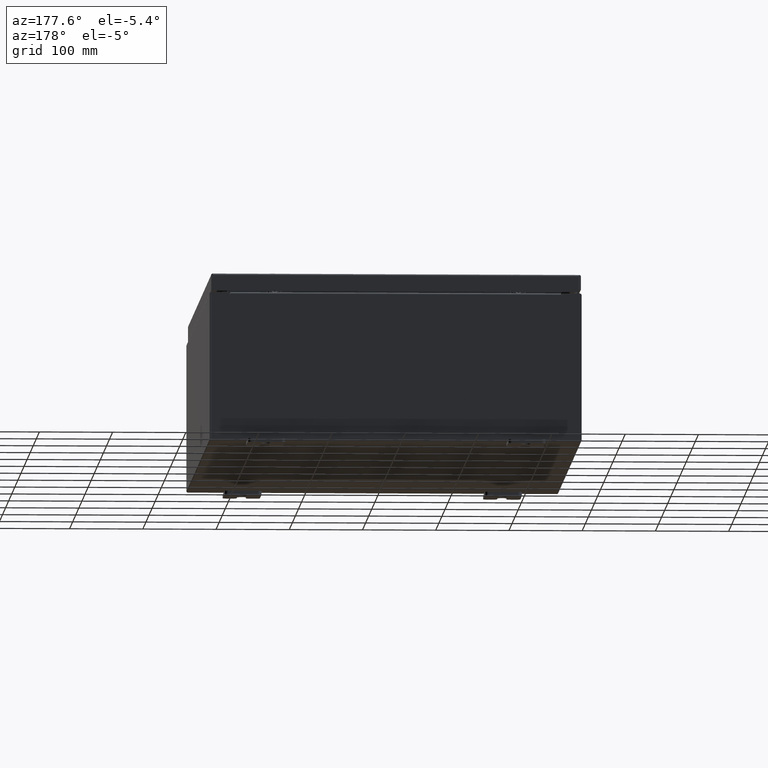
[diagram: clean part render]
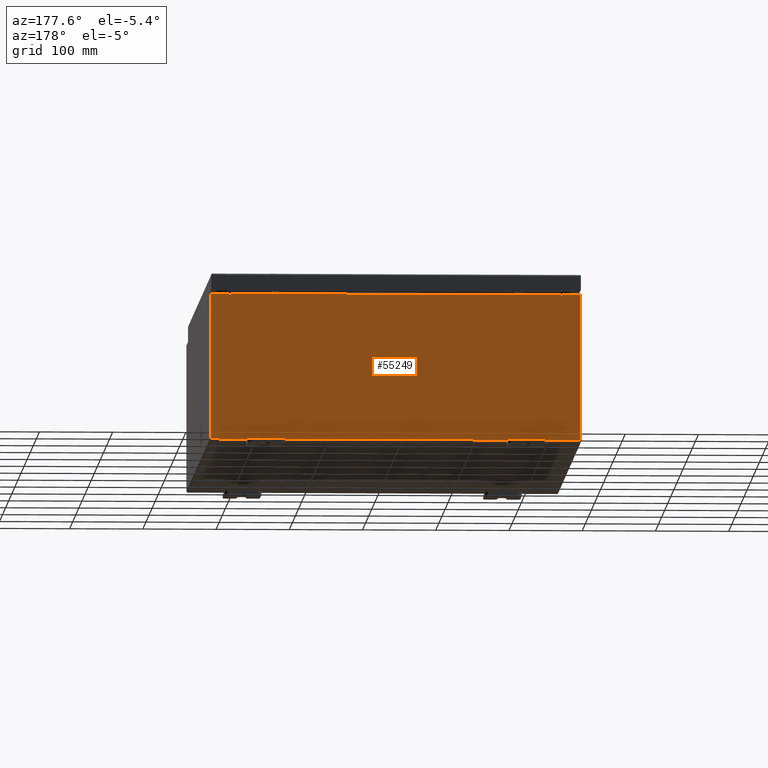
[diagram: same view with one face highlighted and labeled with its STEP entity id]
A machine part, auxiliary view. The second image highlights one B-rep face of the part: STEP entity #55249.
In plain terms, the highlighted planar face has unit normal (0, -1, 0).
Its self-contained STEP definition (entity closure, byte-faithful):
#332 = VECTOR ( 'NONE', #34053, 39.37007874015748100 ) ;
#1232 = VERTEX_POINT ( 'NONE', #18783 ) ;
#1401 = DIRECTION ( 'NONE',  ( 0.0000000000000000000, 0.0000000000000000000, -1.000000000000000000 ) ) ;
#2422 = CARTESIAN_POINT ( 'NONE',  ( 8.924549999999831200, -0.0000000000000000000, -3.873765880731813500E-013 ) ) ;
#2809 = VERTEX_POINT ( 'NONE', #6206 ) ;
#3944 = VECTOR ( 'NONE', #43146, 39.37007874015748100 ) ;
#4521 = VECTOR ( 'NONE', #11487, 39.37007874015748100 ) ;
#4735 = VERTEX_POINT ( 'NONE', #12769 ) ;
#5803 = VERTEX_POINT ( 'NONE', #38382 ) ;
#6176 = VECTOR ( 'NONE', #61649, 39.37007874015748100 ) ;
#6206 = CARTESIAN_POINT ( 'NONE',  ( 9.925300000000000000, 0.0000000000000000000, -3.925299999999999600 ) ) ;
#6792 = VECTOR ( 'NONE', #1401, 39.37007874015748100 ) ;
#7474 = ORIENTED_EDGE ( 'NONE', *, *, #50141, .T. ) ;
#7710 = EDGE_CURVE ( 'NONE', #49807, #31341, #41537, .T. ) ;
#8410 = ORIENTED_EDGE ( 'NONE', *, *, #31869, .F. ) ;
#8414 = CARTESIAN_POINT ( 'NONE',  ( -8.924550000000000000, -0.0000000000000000000, 0.0000000000000000000 ) ) ;
#8947 = VECTOR ( 'NONE', #13091, 39.37007874015748100 ) ;
#9568 = VECTOR ( 'NONE', #19573, 39.37007874015748100 ) ;
#10337 = AXIS2_PLACEMENT_3D ( 'NONE', #58798, #29211, #63765 ) ;
#10699 = DIRECTION ( 'NONE',  ( 0.0000000000000000000, 0.0000000000000000000, -1.000000000000000000 ) ) ;
#11098 = CARTESIAN_POINT ( 'NONE',  ( -8.887200000000000000, -0.0000000000000000000, 3.874949999999999700 ) ) ;
#11487 = DIRECTION ( 'NONE',  ( -1.000000000000000000, -0.0000000000000000000, -0.0000000000000000000 ) ) ;
#11967 = VERTEX_POINT ( 'NONE', #59877 ) ;
#12769 = CARTESIAN_POINT ( 'NONE',  ( -9.925300000000000000, 0.0000000000000000000, -3.925299999999999600 ) ) ;
#13084 = CARTESIAN_POINT ( 'NONE',  ( 8.887200000000000000, 0.0000000000000000000, 3.912299999999999700 ) ) ;
#13091 = DIRECTION ( 'NONE',  ( -0.0000000000000000000, -0.0000000000000000000, 1.000000000000000000 ) ) ;
#13666 = VERTEX_POINT ( 'NONE', #53024 ) ;
#15125 = ORIENTED_EDGE ( 'NONE', *, *, #16069, .T. ) ;
#15677 = DIRECTION ( 'NONE',  ( 0.0000000000000000000, -1.000000000000000000, 0.0000000000000000000 ) ) ;
#16069 = EDGE_CURVE ( 'NONE', #31701, #2809, #34850, .T. ) ;
#17163 = LINE ( 'NONE', #8414, #3944 ) ;
#17746 = LINE ( 'NONE', #46240, #4521 ) ;
#18295 = CIRCLE ( 'NONE', #10337, 0.01867500000000003900 ) ;
#18635 = EDGE_LOOP ( 'NONE', ( #46756, #24951, #54547, #42661, #27968, #8410, #48199, #39427, #15125, #7474, #42289, #22585 ) ) ;
#18783 = CARTESIAN_POINT ( 'NONE',  ( 8.887200000000000000, 0.0000000000000000000, 3.874949999999999700 ) ) ;
#19573 = DIRECTION ( 'NONE',  ( 1.000000000000000000, 0.0000000000000000000, 0.0000000000000000000 ) ) ;
#20675 = EDGE_CURVE ( 'NONE', #5803, #43091, #29117, .T. ) ;
#22210 = LINE ( 'NONE', #32861, #8947 ) ;
#22257 = CARTESIAN_POINT ( 'NONE',  ( -8.924550000000000000, 0.0000000000000000000, 3.925299999999999600 ) ) ;
#22585 = ORIENTED_EDGE ( 'NONE', *, *, #61031, .T. ) ;
#24804 = LINE ( 'NONE', #63779, #51142 ) ;
#24951 = ORIENTED_EDGE ( 'NONE', *, *, #41388, .F. ) ;
#27968 = ORIENTED_EDGE ( 'NONE', *, *, #60793, .F. ) ;
#28358 = CARTESIAN_POINT ( 'NONE',  ( 8.905875000000000000, 0.0000000000000000000, 3.874949999999999700 ) ) ;
#28541 = LINE ( 'NONE', #60920, #6792 ) ;
#29064 = CARTESIAN_POINT ( 'NONE',  ( -8.887200000000000000, 1.024442997624098700E-016, 3.912299999999999700 ) ) ;
#29117 = LINE ( 'NONE', #2422, #50782 ) ;
#29211 = DIRECTION ( 'NONE',  ( -0.0000000000000000000, 1.000000000000000000, -0.0000000000000000000 ) ) ;
#31341 = VERTEX_POINT ( 'NONE', #13084 ) ;
#31701 = VERTEX_POINT ( 'NONE', #52365 ) ;
#31869 = EDGE_CURVE ( 'NONE', #43091, #1232, #55933, .T. ) ;
#32089 = CARTESIAN_POINT ( 'NONE',  ( 8.887200000000000000, 0.0000000000000000000, 0.0000000000000000000 ) ) ;
#32861 = CARTESIAN_POINT ( 'NONE',  ( -9.925300000000000000, 0.0000000000000000000, 3.925299999999999600 ) ) ;
#33331 = DIRECTION ( 'NONE',  ( 0.0000000000000000000, 0.0000000000000000000, -1.000000000000000000 ) ) ;
#34053 = DIRECTION ( 'NONE',  ( 1.000000000000000000, 0.0000000000000000000, 0.0000000000000000000 ) ) ;
#34230 = DIRECTION ( 'NONE',  ( 1.000000000000000000, 0.0000000000000000000, 0.0000000000000000000 ) ) ;
#34850 = LINE ( 'NONE', #55352, #62637 ) ;
#35426 = CARTESIAN_POINT ( 'NONE',  ( 0.0000000000000000000, 0.0000000000000000000, 0.0000000000000000000 ) ) ;
#36809 = EDGE_CURVE ( 'NONE', #49807, #59896, #28541, .T. ) ;
#37143 = DIRECTION ( 'NONE',  ( -4.340572780400004900E-014, 0.0000000000000000000, -1.000000000000000000 ) ) ;
#37483 = FACE_OUTER_BOUND ( 'NONE', #18635, .T. ) ;
#38382 = CARTESIAN_POINT ( 'NONE',  ( 8.924550000000000000, 0.0000000000000000000, 3.925299999999999600 ) ) ;
#38981 = EDGE_CURVE ( 'NONE', #4735, #13666, #22210, .T. ) ;
#39427 = ORIENTED_EDGE ( 'NONE', *, *, #43024, .T. ) ;
#41388 = EDGE_CURVE ( 'NONE', #59896, #11967, #18295, .T. ) ;
#41537 = LINE ( 'NONE', #29064, #332 ) ;
#42289 = ORIENTED_EDGE ( 'NONE', *, *, #38981, .T. ) ;
#42661 = ORIENTED_EDGE ( 'NONE', *, *, #7710, .T. ) ;
#43024 = EDGE_CURVE ( 'NONE', #5803, #31701, #53807, .T. ) ;
#43091 = VERTEX_POINT ( 'NONE', #59985 ) ;
#43146 = DIRECTION ( 'NONE',  ( 0.0000000000000000000, 0.0000000000000000000, 1.000000000000000000 ) ) ;
#45417 = PLANE ( 'NONE',  #51949 ) ;
#46240 = CARTESIAN_POINT ( 'NONE',  ( -9.925300000000000000, 0.0000000000000000000, -3.925299999999999600 ) ) ;
#46756 = ORIENTED_EDGE ( 'NONE', *, *, #59468, .F. ) ;
#48199 = ORIENTED_EDGE ( 'NONE', *, *, #20675, .F. ) ;
#49807 = VERTEX_POINT ( 'NONE', #60676 ) ;
#50141 = EDGE_CURVE ( 'NONE', #2809, #4735, #17746, .T. ) ;
#50337 = DIRECTION ( 'NONE',  ( 0.0000000000000000000, -0.0000000000000000000, -1.000000000000000000 ) ) ;
#50782 = VECTOR ( 'NONE', #37143, 39.37007874015748100 ) ;
#51142 = VECTOR ( 'NONE', #34230, 39.37007874015748100 ) ;
#51949 = AXIS2_PLACEMENT_3D ( 'NONE', #35426, #15677, #50337 ) ;
#52365 = CARTESIAN_POINT ( 'NONE',  ( 9.925300000000000000, 0.0000000000000000000, 3.925299999999999600 ) ) ;
#53024 = CARTESIAN_POINT ( 'NONE',  ( -9.925300000000000000, 0.0000000000000000000, 3.925299999999999600 ) ) ;
#53807 = LINE ( 'NONE', #54187, #9568 ) ;
#54187 = CARTESIAN_POINT ( 'NONE',  ( -9.925300000000000000, 0.0000000000000000000, 3.925299999999999600 ) ) ;
#54547 = ORIENTED_EDGE ( 'NONE', *, *, #36809, .F. ) ;
#55249 = ADVANCED_FACE ( 'NONE', ( #37483 ), #45417, .F. ) ;
#55352 = CARTESIAN_POINT ( 'NONE',  ( 9.925300000000000000, 0.0000000000000000000, 3.925299999999999600 ) ) ;
#55933 = CIRCLE ( 'NONE', #57814, 0.01867500000000003900 ) ;
#57320 = LINE ( 'NONE', #32089, #6176 ) ;
#57814 = AXIS2_PLACEMENT_3D ( 'NONE', #28358, #62899, #33331 ) ;
#58798 = CARTESIAN_POINT ( 'NONE',  ( -8.905874999999998200, 0.0000000000000000000, 3.874949999999999700 ) ) ;
#59468 = EDGE_CURVE ( 'NONE', #11967, #63100, #17163, .T. ) ;
#59877 = CARTESIAN_POINT ( 'NONE',  ( -8.924549999999998200, 0.0000000000000000000, 3.874949999999999700 ) ) ;
#59896 = VERTEX_POINT ( 'NONE', #11098 ) ;
#59985 = CARTESIAN_POINT ( 'NONE',  ( 8.924550000000000000, 0.0000000000000000000, 3.874949999999999700 ) ) ;
#60676 = CARTESIAN_POINT ( 'NONE',  ( -8.887200000000000000, 1.024442997624098700E-016, 3.912299999999999700 ) ) ;
#60793 = EDGE_CURVE ( 'NONE', #1232, #31341, #57320, .T. ) ;
#60920 = CARTESIAN_POINT ( 'NONE',  ( -8.887200000000000000, -0.0000000000000000000, 0.0000000000000000000 ) ) ;
#61031 = EDGE_CURVE ( 'NONE', #13666, #63100, #24804, .T. ) ;
#61649 = DIRECTION ( 'NONE',  ( 0.0000000000000000000, 0.0000000000000000000, 1.000000000000000000 ) ) ;
#62637 = VECTOR ( 'NONE', #10699, 39.37007874015748100 ) ;
#62899 = DIRECTION ( 'NONE',  ( -0.0000000000000000000, 1.000000000000000000, -0.0000000000000000000 ) ) ;
#63100 = VERTEX_POINT ( 'NONE', #22257 ) ;
#63765 = DIRECTION ( 'NONE',  ( 0.0000000000000000000, 0.0000000000000000000, -1.000000000000000000 ) ) ;
#63779 = CARTESIAN_POINT ( 'NONE',  ( -9.925300000000000000, 0.0000000000000000000, 3.925299999999999600 ) ) ;